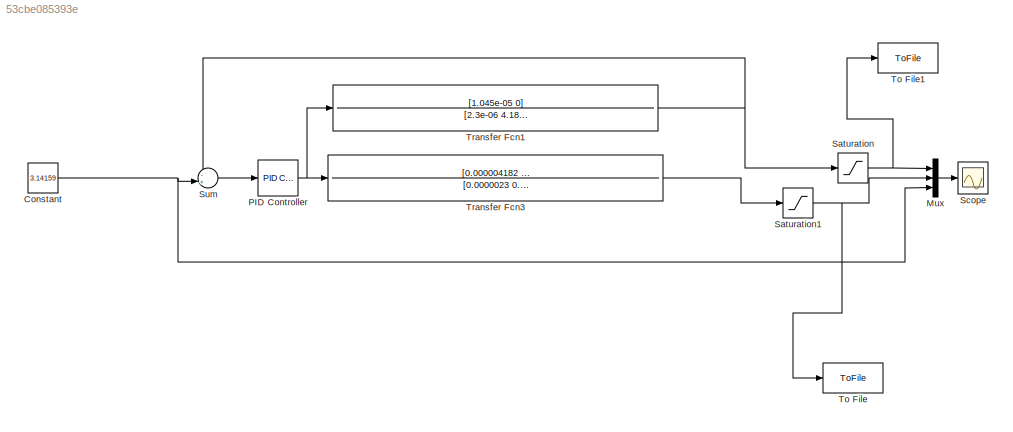
MODEL slx_53cbe085393e
KIND model
CONFIG AbsTol = auto
CONFIG EnableMultiTasking = off
CONFIG FixedStep = auto
CONFIG MaxStep = auto
CONFIG MinStep = auto
CONFIG RelTol = 1e-3
CONFIG SampleTimeConstraint = Unconstrained
CONFIG Solver = VariableStepAuto
CONFIG SolverName = VariableStepAuto
CONFIG StartTime = 0.0
CONFIG StopTime = 10
BLOCK [Constant] Constant
  Value = 3.14159
BLOCK [Mux] Mux
  DisplayOption = bar
  Inputs = 3
  Ports = [3, 1]
BLOCK [Reference] PID Controller  REF=simulink/Continuous/PID Controller
  Ports = [1, 1]
  SourceBlock = simulink/Continuous/PID Controller
  SourceProductBaseCode = SL
  SourceProductName = Simulink
  SourceType = PID 1dof
BLOCK [Saturate] Saturation
  InputPortMap = u0
  LowerLimit = -20
  Ports = [1, 1]
  UpperLimit = 20
BLOCK [Saturate] Saturation1
  InputPortMap = u0
  LowerLimit = -1000
  Ports = [1, 1]
  UpperLimit = 1000
BLOCK [Scope] Scope
  Floating = off
  NumInputPorts = 1
  Ports = [1]
  ScopeSpecificationString = Simulink.scopes.TimeScopeBlockCfg('CurrentConfiguration', extmgr.ConfigurationSet(extmgr.Configuration('Core','General UI',true),extmgr.Configuration('Core','Source UI',true),extmgr.Configuration('Sources','WiredSimulink',true),extmgr.Configuration('Visuals','Time Domain',true,'SerializedDisplays',{struct('MinYLimReal','-19.94972','MaxYLimReal','43.54397','YLabelReal','','MinYLimMag','0.00000','Ma...<+1431ch>
BLOCK [Sum] Sum
  IconShape = round
  InputSameDT = off
  Inputs = -+|
  OutDataTypeStr = Inherit: Inherit via internal rule
  Ports = [2, 1]
  SaturateOnIntegerOverflow = off
BLOCK [ToFile] To File
  Filename = xout.mat
  MatrixName = xout
  Ports = [1]
  SaveFormat = Timeseries
BLOCK [ToFile] To File1
  Filename = thetaout.mat
  MatrixName = thetaout
  Ports = [1]
  SaveFormat = Timeseries
BLOCK [TransferFcn] Transfer Fcn1
  Denominator = [2.3e-06 4.182e-07 -7.172e-05 -1.025e-05]
  Numerator = [1.045e-05 0]
BLOCK [TransferFcn] Transfer Fcn3
  Denominator = [0.0000023 0.0000004182 -0.00007172 -0.00001025]
  Numerator = [0.000004182 0 -0.0001025]
NET Constant:1 -> Mux:3, Sum:2
LINE Mux:1 -> Scope:1
NET PID Controller:1 -> Transfer Fcn1:1, Transfer Fcn3:1
NET Saturation1:1 -> Mux:2, To File:1
NET Saturation:1 -> Mux:1, To File1:1
LINE Sum:1 -> PID Controller:1
NET Transfer Fcn1:1 -> Saturation:1, Sum:1
LINE Transfer Fcn3:1 -> Saturation1:1
note: NET lines group one-source signal fan-out (src -> all destinations, sorted); 1:1 wires keep LINE
